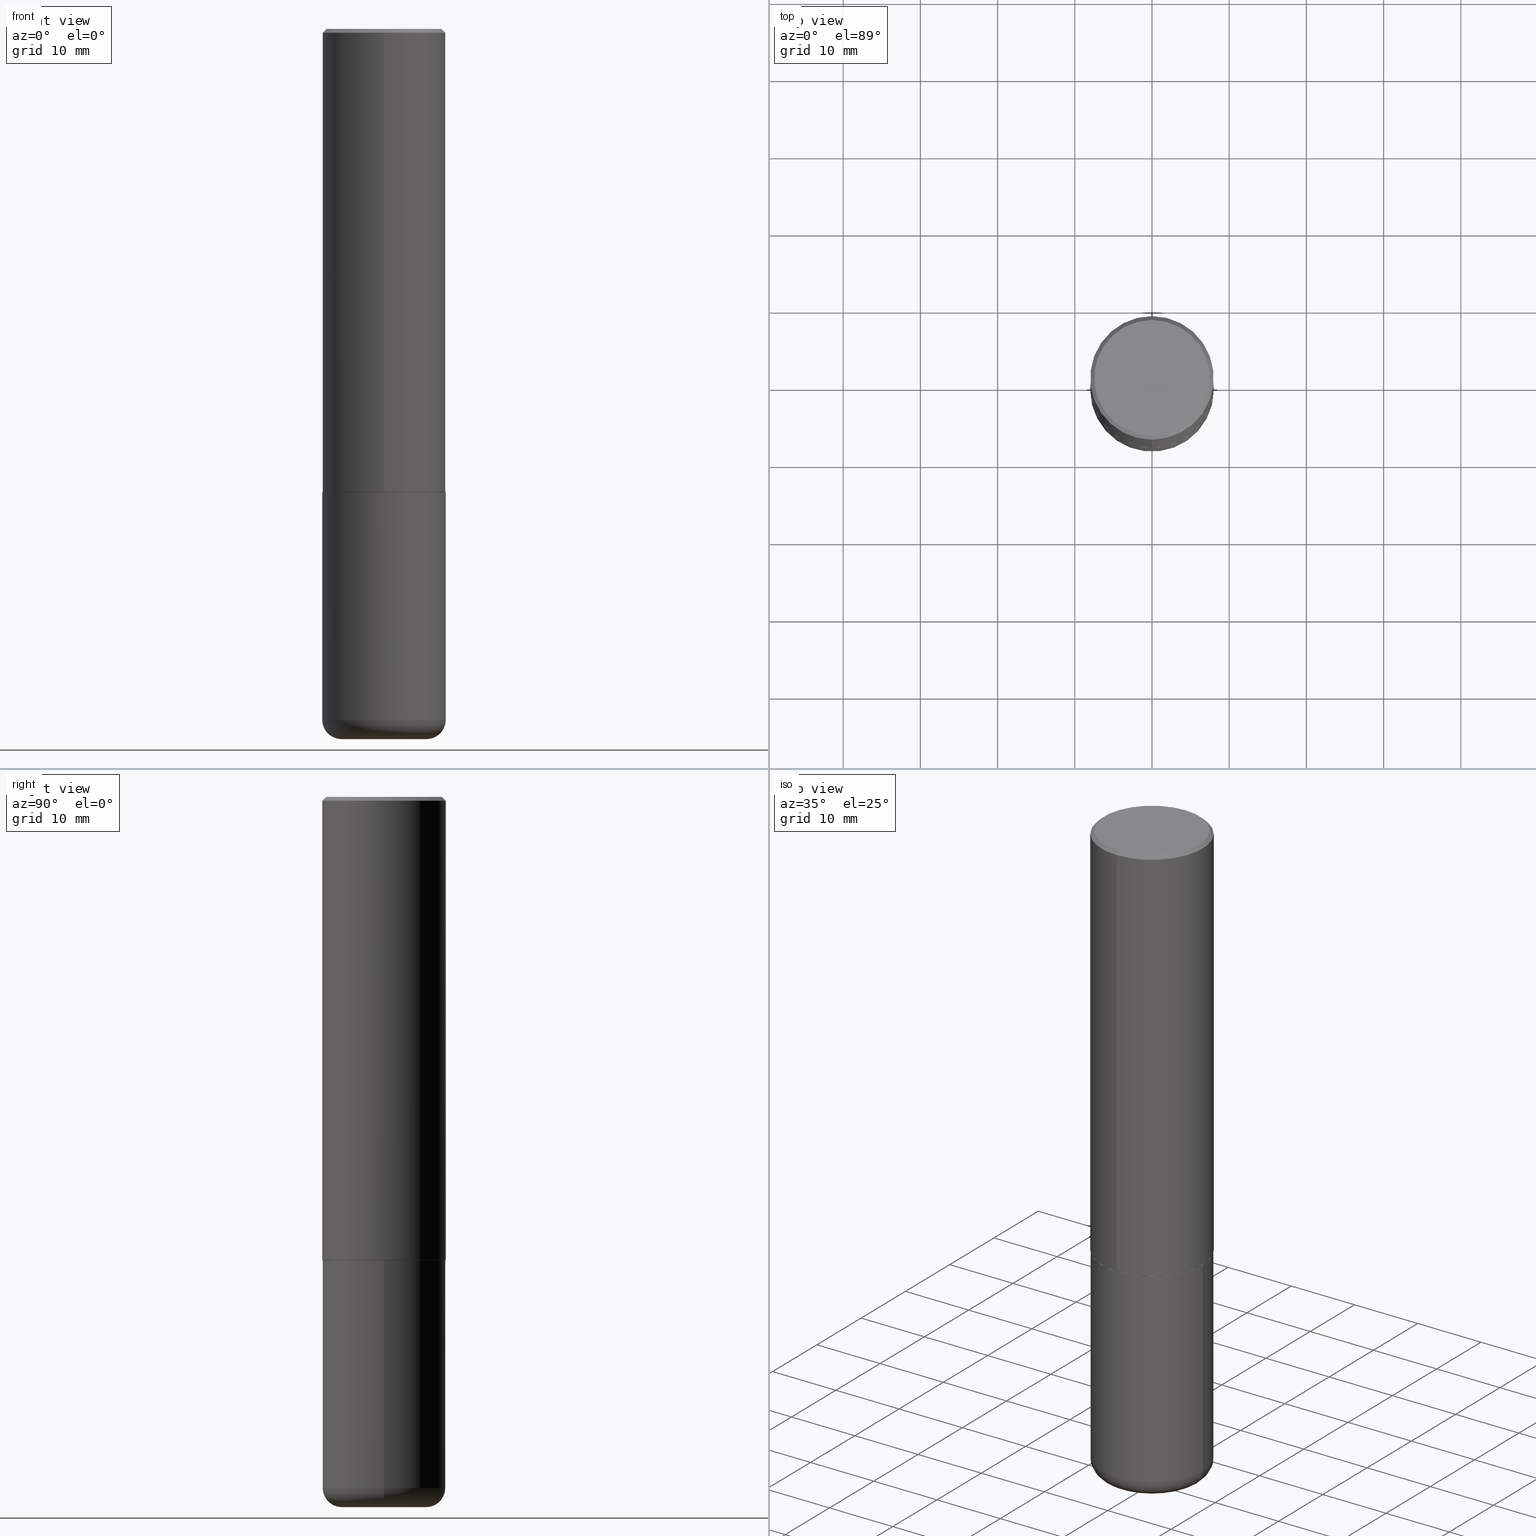
[diagram: canonical four-view strip — front | top / right | iso, engineering-drawing reading convention]
A machine part, canonical four-view strip (front | top / right | iso — engineering-drawing reading convention). The complete STEP part file that produces these views, byte-faithful:
ISO-10303-21;
HEADER;
FILE_DESCRIPTION (( 'STEP AP203' ),
    '1' );
FILE_NAME ('44829.STEP',
    '2024-03-04T09:25:03',
    ( '' ),
    ( '' ),
    'SwSTEP 2.0',
    'SolidWorks 2023',
    '' );
FILE_SCHEMA (( 'CONFIG_CONTROL_DESIGN' ));
ENDSEC;

DATA;
#1 = DIRECTION ( 'NONE',  ( -6.982962677686265922E-15, -1.000000000000000000, 3.488924027272925171E-15 ) ) ;
#2 = EDGE_CURVE ( 'NONE', #26, #371, #51, .T. ) ;
#3 = DIRECTION ( 'NONE',  ( -4.937700262164378437E-15, -0.7071067811865208164, 0.7071067811865739960 ) ) ;
#4 = TOROIDAL_SURFACE ( 'NONE', #60, 0.2165500000000000203, 0.09839999999999984870 ) ;
#5 = LOCAL_TIME ( 4, 25, 3.000000000000000000, #195 ) ;
#6 = CC_DESIGN_SECURITY_CLASSIFICATION ( #359, ( #35 ) ) ;
#7 = DIRECTION ( 'NONE',  ( 1.000000000000000000, -6.982962677686266711E-15, 4.883557194083112901E-29 ) ) ;
#8 = PERSON_AND_ORGANIZATION ( #14, #31 ) ;
#9 = ORIENTED_EDGE ( 'NONE', *, *, #90, .F. ) ;
#10 = COORDINATED_UNIVERSAL_TIME_OFFSET ( 5, 0, .BEHIND. ) ;
#11 = COORDINATED_UNIVERSAL_TIME_OFFSET ( 5, 0, .BEHIND. ) ;
#12 = AXIS2_PLACEMENT_3D ( 'NONE', #286, #190, #358 ) ;
#13 = EDGE_CURVE ( 'NONE', #371, #408, #357, .T. ) ;
#14 = PERSON ( 'UNSPECIFIED', 'UNSPECIFIED', 'UNSPECIFIED', ('UNSPECIFIED'), ('UNSPECIFIED'), ('UNSPECIFIED') ) ;
#15 = ADVANCED_FACE ( 'NONE', ( #247 ), #380, .T. ) ;
#16 = CARTESIAN_POINT ( 'NONE',  ( -0.2165500000000000203, -1.058609720713632398E-14, -3.621999999999999442 ) ) ;
#17 = EDGE_LOOP ( 'NONE', ( #100, #307 ) ) ;
#18 = ADVANCED_FACE ( 'NONE', ( #158 ), #42, .F. ) ;
#19 = CARTESIAN_POINT ( 'NONE',  ( 2.199284095337289871E-15, 0.3149499999999999522, -0.02000000000000116615 ) ) ;
#20 = AXIS2_PLACEMENT_3D ( 'NONE', #252, #217, #52 ) ;
#21 = CARTESIAN_POINT ( 'NONE',  ( 5.778457484332707712E-29, -8.238047413196831500E-15, -2.361199999999999743 ) ) ;
#22 = CARTESIAN_POINT ( 'NONE',  ( 0.2165500000000000203, -1.381474421340066671E-14, -3.523599999999999621 ) ) ;
#23 = DIRECTION ( 'NONE',  ( -6.982962677686266711E-15, -1.000000000000000000, 3.480615376543096919E-15 ) ) ;
#24 = DIRECTION ( 'NONE',  ( 1.000000000000000000, -6.982962677686269866E-15, 0.000000000000000000 ) ) ;
#25 = CLOSED_SHELL ( 'NONE', ( #290, #15, #116, #240, #109, #73, #64, #58 ) ) ;
#26 = VERTEX_POINT ( 'NONE', #402 ) ;
#27 = EDGE_CURVE ( 'NONE', #176, #119, #271, .T. ) ;
#28 = CARTESIAN_POINT ( 'NONE',  ( -2.199284095337290265E-15, -0.3149500000000001743, 1.098836622389608521E-15 ) ) ;
#29 =( NAMED_UNIT ( * ) SI_UNIT ( $, .STERADIAN. ) SOLID_ANGLE_UNIT ( ) );
#30 = AXIS2_PLACEMENT_3D ( 'NONE', #399, #165, #37 ) ;
#31 = ORGANIZATION ( 'UNSPECIFIED', 'UNSPECIFIED', '' ) ;
#32 = DIRECTION ( 'NONE',  ( -1.000000000000000000, 6.982962677686265922E-15, -4.876176775795935793E-29 ) ) ;
#33 = CARTESIAN_POINT ( 'NONE',  ( -2.192301132659545875E-15, -0.3139500000000082780, -2.362199999999998745 ) ) ;
#34 = AXIS2_PLACEMENT_3D ( 'NONE', #95, #285, #155 ) ;
#35 = PRODUCT_DEFINITION_FORMATION_WITH_SPECIFIED_SOURCE ( 'ANY', '', #178, .NOT_KNOWN. ) ;
#36 = CALENDAR_DATE ( 2024, 4, 3 ) ;
#37 = DIRECTION ( 'NONE',  ( 6.982962677686265922E-15, 1.000000000000000000, -3.488924027272925171E-15 ) ) ;
#38 = ORIENTED_EDGE ( 'NONE', *, *, #308, .F. ) ;
#39 = ADVANCED_FACE ( 'NONE', ( #300 ), #4, .T. ) ;
#40 = EDGE_LOOP ( 'NONE', ( #245, #61 ) ) ;
#41 = APPROVAL_STATUS ( 'not_yet_approved' ) ;
#42 = PLANE ( 'NONE',  #229 ) ;
#43 = EDGE_CURVE ( 'NONE', #408, #371, #330, .T. ) ;
#44 = DIRECTION ( 'NONE',  ( 1.000000000000000000, 0.000000000000000000, 0.000000000000000000 ) ) ;
#45 = CONICAL_SURFACE ( 'NONE', #405, 0.3139500000000000068, 0.7853981633974141952 ) ;
#46 = PRODUCT_DEFINITION_SHAPE ( 'NONE', 'NONE',  #49 ) ;
#47 = FACE_OUTER_BOUND ( 'NONE', #236, .T. ) ;
#48 = CARTESIAN_POINT ( 'NONE',  ( 0.000000000000000000, 0.000000000000000000, 0.000000000000000000 ) ) ;
#49 = PRODUCT_DEFINITION ( 'UNKNOWN', '', #35, #68 ) ;
#50 = DIRECTION ( 'NONE',  ( 1.000000000000000000, -6.982962677686266711E-15, 4.883557194083112901E-29 ) ) ;
#51 = LINE ( 'NONE', #410, #131 ) ;
#52 = DIRECTION ( 'NONE',  ( 6.982962677686265922E-15, 1.000000000000000000, -3.483117034309591132E-15 ) ) ;
#53 = AXIS2_PLACEMENT_3D ( 'NONE', #311, #243, #216 ) ;
#54 = FACE_OUTER_BOUND ( 'NONE', #230, .T. ) ;
#55 = ORIENTED_EDGE ( 'NONE', *, *, #43, .F. ) ;
#56 = CARTESIAN_POINT ( 'NONE',  ( 8.616853885473946211E-29, -1.230258364554770589E-14, -3.523599999999999621 ) ) ;
#57 = ORIENTED_EDGE ( 'NONE', *, *, #218, .F. ) ;
#58 = ADVANCED_FACE ( 'NONE', ( #362 ), #333, .F. ) ;
#59 =( LENGTH_UNIT ( ) NAMED_UNIT ( * ) SI_UNIT ( $, .METRE. ) );
#60 = AXIS2_PLACEMENT_3D ( 'NONE', #238, #200, #7 ) ;
#61 = ORIENTED_EDGE ( 'NONE', *, *, #343, .F. ) ;
#62 = VECTOR ( 'NONE', #377, 39.37007874015748143 ) ;
#63 = CARTESIAN_POINT ( 'NONE',  ( 1.523889590590419512E-28, -3.507606103769704490E-15, -3.621999999999999886 ) ) ;
#64 = ADVANCED_FACE ( 'NONE', ( #264 ), #162, .F. ) ;
#65 = DIRECTION ( 'NONE',  ( 1.000000000000000000, -6.982962677686264344E-15, 0.000000000000000000 ) ) ;
#66 = LINE ( 'NONE', #323, #319 ) ;
#67 = DATE_TIME_ROLE ( 'creation_date' ) ;
#68 = DESIGN_CONTEXT ( 'detailed design', #123, 'design' ) ;
#69 = ORIENTED_EDGE ( 'NONE', *, *, #187, .F. ) ;
#70 = AXIS2_PLACEMENT_3D ( 'NONE', #86, #191, #108 ) ;
#71 = CALENDAR_DATE ( 2024, 4, 3 ) ;
#72 = VERTEX_POINT ( 'NONE', #206 ) ;
#73 = ADVANCED_FACE ( 'NONE', ( #47 ), #110, .T. ) ;
#74 = DATE_TIME_ROLE ( 'classification_date' ) ;
#75 = CARTESIAN_POINT ( 'NONE',  ( -0.2165500000000000203, -1.076390335125921037E-14, -3.523599999999999621 ) ) ;
#76 = ORIENTED_EDGE ( 'NONE', *, *, #93, .F. ) ;
#77 = ORIENTED_EDGE ( 'NONE', *, *, #292, .F. ) ;
#78 = TOROIDAL_SURFACE ( 'NONE', #294, 0.2165500000000000203, 0.09839999999999984870 ) ;
#79 = VERTEX_POINT ( 'NONE', #370 ) ;
#80 = DIRECTION ( 'NONE',  ( -2.445468806185136597E-29, 3.491481338843145583E-15, 1.000000000000000000 ) ) ;
#81 = ORIENTED_EDGE ( 'NONE', *, *, #329, .F. ) ;
#82 = DIRECTION ( 'NONE',  ( 2.447254567310142588E-29, -3.488924027272925566E-15, -1.000000000000000000 ) ) ;
#83 = EDGE_LOOP ( 'NONE', ( #337, #386 ) ) ;
#84 = CARTESIAN_POINT ( 'NONE',  ( 4.894509134620301711E-31, -6.977848054545874748E-17, -0.02000000000000006981 ) ) ;
#85 = CIRCLE ( 'NONE', #197, 0.3149500000000000077 ) ;
#86 = CARTESIAN_POINT ( 'NONE',  ( 0.000000000000000000, 0.000000000000000000, 0.000000000000000000 ) ) ;
#87 = APPROVAL ( #104, 'UNSPECIFIED' ) ;
#88 = CARTESIAN_POINT ( 'NONE',  ( 8.616853885473946211E-29, -1.230258364554770589E-14, -3.523599999999999621 ) ) ;
#89 = DIRECTION ( 'NONE',  ( -6.982962677686264344E-15, -1.000000000000000000, 3.488924027272925566E-15 ) ) ;
#90 = EDGE_CURVE ( 'NONE', #113, #72, #159, .T. ) ;
#91 = CARTESIAN_POINT ( 'NONE',  ( 3.987991069510620843E-45, -5.685472222147516849E-31, -1.629577536714519852E-16 ) ) ;
#92 = AXIS2_PLACEMENT_3D ( 'NONE', #91, #225, #1 ) ;
#93 = EDGE_CURVE ( 'NONE', #279, #276, #141, .T. ) ;
#94 = APPLICATION_PROTOCOL_DEFINITION ( 'international standard', 'config_control_design', 1994, #125 ) ;
#95 = CARTESIAN_POINT ( 'NONE',  ( 3.987991069510620843E-45, -5.685472222147516849E-31, -1.629577536714519852E-16 ) ) ;
#96 = AXIS2_PLACEMENT_3D ( 'NONE', #84, #82, #409 ) ;
#97 = CIRCLE ( 'NONE', #92, 0.2949500000000001565 ) ;
#98 = DIRECTION ( 'NONE',  ( 4.937700262164541731E-15, 0.7071067811865442421, -0.7071067811865507924 ) ) ;
#99 = PERSON_AND_ORGANIZATION ( #14, #31 ) ;
#100 = ORIENTED_EDGE ( 'NONE', *, *, #187, .T. ) ;
#101 = DIRECTION ( 'NONE',  ( 0.000000000000000000, 0.000000000000000000, 1.000000000000000000 ) ) ;
#102 = APPROVAL ( #338, 'UNSPECIFIED' ) ;
#103 = CIRCLE ( 'NONE', #12, 0.3149500000000000077 ) ;
#104 = APPROVAL_STATUS ( 'not_yet_approved' ) ;
#105 = DIRECTION ( 'NONE',  ( -6.982962677686266711E-15, -1.000000000000000000, 3.480615376543096919E-15 ) ) ;
#106 = ORIENTED_EDGE ( 'NONE', *, *, #13, .F. ) ;
#107 = CALENDAR_DATE ( 2024, 4, 3 ) ;
#108 = DIRECTION ( 'NONE',  ( -6.982962677686264344E-15, -1.000000000000000000, 3.488924027272925566E-15 ) ) ;
#109 = ADVANCED_FACE ( 'NONE', ( #121 ), #249, .T. ) ;
#110 = CONICAL_SURFACE ( 'NONE', #353, 0.3139500000000000068, 0.7853981633974141952 ) ;
#111 = FACE_OUTER_BOUND ( 'NONE', #166, .T. ) ;
#112 = DIRECTION ( 'NONE',  ( -2.447254567310142588E-29, 3.488924027272925566E-15, 1.000000000000000000 ) ) ;
#113 = VERTEX_POINT ( 'NONE', #16 ) ;
#114 = DIRECTION ( 'NONE',  ( -6.982962677686266711E-15, -1.000000000000000000, 3.480615376543096919E-15 ) ) ;
#115 = DIRECTION ( 'NONE',  ( -6.982962677686265922E-15, -1.000000000000000000, 3.469564049740290009E-15 ) ) ;
#116 = ADVANCED_FACE ( 'NONE', ( #54 ), #281, .T. ) ;
#117 = DIRECTION ( 'NONE',  ( -2.445468806185136597E-29, 3.491481338843145583E-15, 1.000000000000000000 ) ) ;
#118 = CIRCLE ( 'NONE', #255, 0.3149500000000000077 ) ;
#119 = VERTEX_POINT ( 'NONE', #173 ) ;
#120 = MANIFOLD_SOLID_BREP ( 'Body-Move/Copy2[2]', #25 ) ;
#121 = FACE_OUTER_BOUND ( 'NONE', #274, .T. ) ;
#122 = ORIENTED_EDGE ( 'NONE', *, *, #2, .T. ) ;
#123 = APPLICATION_CONTEXT ( 'configuration controlled 3d designs of mechanical parts and assemblies' ) ;
#124 = CARTESIAN_POINT ( 'NONE',  ( -2.199284095337233467E-15, -0.3149500000000085564, -2.361199999999998411 ) ) ;
#125 = APPLICATION_CONTEXT ( 'configuration controlled 3d designs of mechanical parts and assemblies' ) ;
#126 =( CONVERSION_BASED_UNIT ( 'INCH', #415 ) LENGTH_UNIT ( ) NAMED_UNIT ( #348 ) );
#127 = CIRCLE ( 'NONE', #324, 0.2165500000000000203 ) ;
#128 = CC_DESIGN_APPROVAL ( #102, ( #35 ) ) ;
#129 = DIRECTION ( 'NONE',  ( -4.851104656540957964E-15, -0.7071067811865491270, -0.7071067811865459074 ) ) ;
#130 = EDGE_CURVE ( 'NONE', #371, #279, #183, .T. ) ;
#131 = VECTOR ( 'NONE', #312, 39.37007874015748854 ) ;
#132 = PERSON_AND_ORGANIZATION_ROLE ( 'design_supplier' ) ;
#133 = ORIENTED_EDGE ( 'NONE', *, *, #320, .F. ) ;
#134 = APPROVAL_ROLE ( '' ) ;
#135 = AXIS2_PLACEMENT_3D ( 'NONE', #157, #101, #44 ) ;
#136 = LOCAL_TIME ( 4, 25, 3.000000000000000000, #11 ) ;
#137 = DIRECTION ( 'NONE',  ( 1.000000000000000000, -6.982962677686266711E-15, 0.000000000000000000 ) ) ;
#138 = CC_DESIGN_PERSON_AND_ORGANIZATION_ASSIGNMENT ( #360, #361, ( #178 ) ) ;
#139 = CARTESIAN_POINT ( 'NONE',  ( -0.3149500000000000077, -8.037226085805055984E-15, -2.362199999999999633 ) ) ;
#140 = ORIENTED_EDGE ( 'NONE', *, *, #218, .T. ) ;
#141 = CIRCLE ( 'NONE', #232, 0.3149500000000000077 ) ;
#142 = CARTESIAN_POINT ( 'NONE',  ( 0.3149499999999999522, -1.450186774088499734E-14, -3.523599999999999621 ) ) ;
#143 = DIRECTION ( 'NONE',  ( -2.447254567310142588E-29, 3.488924027272925566E-15, 1.000000000000000000 ) ) ;
#144 = DIRECTION ( 'NONE',  ( -1.000000000000000000, 7.105427357601009747E-15, 0.000000000000000000 ) ) ;
#145 = ORIENTED_EDGE ( 'NONE', *, *, #389, .F. ) ;
#146 = ADVANCED_FACE ( 'NONE', ( #147 ), #411, .T. ) ;
#147 = FACE_OUTER_BOUND ( 'NONE', #186, .T. ) ;
#148 = CARTESIAN_POINT ( 'NONE',  ( -2.160713844398143363E-15, -0.3149500000000000632, -0.01999999999999896999 ) ) ;
#149 = ORIENTED_EDGE ( 'NONE', *, *, #417, .F. ) ;
#150 = DIRECTION ( 'NONE',  ( -2.445468806185136877E-29, 3.491481338843145188E-15, 1.000000000000000000 ) ) ;
#151 = ORIENTED_EDGE ( 'NONE', *, *, #374, .T. ) ;
#152 = LINE ( 'NONE', #256, #354 ) ;
#153 = AXIS2_PLACEMENT_3D ( 'NONE', #297, #396, #261 ) ;
#154 = CIRCLE ( 'NONE', #34, 0.2949500000000001565 ) ;
#155 = DIRECTION ( 'NONE',  ( -6.982962677686265922E-15, -1.000000000000000000, 3.488924027272925171E-15 ) ) ;
#156 = DIRECTION ( 'NONE',  ( -2.447254567310142588E-29, 3.488924027272925171E-15, 1.000000000000000000 ) ) ;
#157 = CARTESIAN_POINT ( 'NONE',  ( 0.000000000000000000, 0.000000000000000000, 0.000000000000000000 ) ) ;
#158 = FACE_OUTER_BOUND ( 'NONE', #17, .T. ) ;
#159 = CIRCLE ( 'NONE', #223, 0.09839999999999986258 ) ;
#160 = DATE_AND_TIME ( #237, #136 ) ;
#161 = APPROVAL_DATE_TIME ( #235, #102 ) ;
#162 = PLANE ( 'NONE',  #153 ) ;
#163 = ORIENTED_EDGE ( 'NONE', *, *, #130, .F. ) ;
#164 = APPROVAL_ROLE ( '' ) ;
#165 = DIRECTION ( 'NONE',  ( 2.447254567310142588E-29, -3.488924027272925171E-15, -1.000000000000000000 ) ) ;
#166 = EDGE_LOOP ( 'NONE', ( #145, #335, #182, #239 ) ) ;
#167 = DATE_AND_TIME ( #334, #5 ) ;
#168 = DIRECTION ( 'NONE',  ( -1.000000000000000000, 6.982962677686265922E-15, -4.876176775795935793E-29 ) ) ;
#169 = CIRCLE ( 'NONE', #242, 0.3149500000000000077 ) ;
#170 = CARTESIAN_POINT ( 'NONE',  ( 5.780904738900019029E-29, -8.241536337224105045E-15, -2.362200000000000077 ) ) ;
#171 = ORIENTED_EDGE ( 'NONE', *, *, #418, .F. ) ;
#172 = CC_DESIGN_PERSON_AND_ORGANIZATION_ASSIGNMENT ( #231, #369, ( #359 ) ) ;
#173 = CARTESIAN_POINT ( 'NONE',  ( 0.3149500000000000077, -1.044686131395256792E-14, -2.362199999999999633 ) ) ;
#174 = ORIENTED_EDGE ( 'NONE', *, *, #406, .F. ) ;
#175 = DIRECTION ( 'NONE',  ( -2.445468806185136597E-29, 3.491481338843145583E-15, 1.000000000000000000 ) ) ;
#176 = VERTEX_POINT ( 'NONE', #139 ) ;
#177 = VECTOR ( 'NONE', #3, 39.37007874015748854 ) ;
#178 = PRODUCT ( '44829', '44829', '', ( #403 ) ) ;
#179 = CARTESIAN_POINT ( 'NONE',  ( 5.780904738900019029E-29, -8.241536337224105045E-15, -2.362200000000000077 ) ) ;
#180 = ORIENTED_EDGE ( 'NONE', *, *, #320, .T. ) ;
#181 = CARTESIAN_POINT ( 'NONE',  ( 5.776686413970529753E-29, -8.247577218615278049E-15, -2.362199999999999633 ) ) ;
#182 = ORIENTED_EDGE ( 'NONE', *, *, #329, .T. ) ;
#183 = LINE ( 'NONE', #309, #62 ) ;
#184 = AXIS2_PLACEMENT_3D ( 'NONE', #21, #143, #115 ) ;
#185 = LINE ( 'NONE', #28, #248 ) ;
#186 = EDGE_LOOP ( 'NONE', ( #342, #373, #378, #253 ) ) ;
#187 = EDGE_CURVE ( 'NONE', #119, #176, #169, .T. ) ;
#188 = CARTESIAN_POINT ( 'NONE',  ( 0.2165500000000000203, -1.415830597714283123E-14, -3.621999999999999442 ) ) ;
#189 = CARTESIAN_POINT ( 'NONE',  ( 2.237854346276465567E-15, 0.3149499999999920141, -2.361200000000000632 ) ) ;
#190 = DIRECTION ( 'NONE',  ( -2.447254567310142588E-29, 3.488924027272925566E-15, 1.000000000000000000 ) ) ;
#191 = DIRECTION ( 'NONE',  ( -2.447254567310142588E-29, 3.488924027272925566E-15, 1.000000000000000000 ) ) ;
#192 = CC_DESIGN_APPROVAL ( #87, ( #49 ) ) ;
#193 = APPROVAL_DATE_TIME ( #160, #280 ) ;
#194 = LINE ( 'NONE', #291, #272 ) ;
#195 = COORDINATED_UNIVERSAL_TIME_OFFSET ( 5, 0, .BEHIND. ) ;
#196 = DIRECTION ( 'NONE',  ( -2.445468806185136597E-29, 3.491481338843145583E-15, 1.000000000000000000 ) ) ;
#197 = AXIS2_PLACEMENT_3D ( 'NONE', #56, #382, #407 ) ;
#198 = APPROVAL_PERSON_ORGANIZATION ( #263, #102, #134 ) ;
#199 = DATE_AND_TIME ( #71, #340 ) ;
#200 = DIRECTION ( 'NONE',  ( -2.445468806185136597E-29, 3.491481338843145583E-15, 1.000000000000000000 ) ) ;
#201 = ORIENTED_EDGE ( 'NONE', *, *, #234, .F. ) ;
#202 = PERSON_AND_ORGANIZATION ( #14, #31 ) ;
#203 = DIRECTION ( 'NONE',  ( 7.105427357601001859E-15, 1.000000000000000000, -3.491481338843145583E-15 ) ) ;
#204 = ORIENTED_EDGE ( 'NONE', *, *, #222, .F. ) ;
#205 = APPROVAL_DATE_TIME ( #167, #87 ) ;
#206 = CARTESIAN_POINT ( 'NONE',  ( -0.3149499999999999522, -1.006472929927126990E-14, -3.523599999999999621 ) ) ;
#207 = ADVANCED_FACE ( 'NONE', ( #375 ), #273, .T. ) ;
#208 = CIRCLE ( 'NONE', #302, 0.3139500000000000068 ) ;
#209 = LOCAL_TIME ( 4, 25, 3.000000000000000000, #260 ) ;
#210 = CARTESIAN_POINT ( 'NONE',  ( 5.776686413970529753E-29, -8.247577218615278049E-15, -2.362199999999999633 ) ) ;
#211 = DIRECTION ( 'NONE',  ( -2.447254567310142588E-29, 3.488924027272925566E-15, 1.000000000000000000 ) ) ;
#212 = ORIENTED_EDGE ( 'NONE', *, *, #418, .T. ) ;
#213 = FACE_OUTER_BOUND ( 'NONE', #214, .T. ) ;
#214 = EDGE_LOOP ( 'NONE', ( #270, #122, #55, #171 ) ) ;
#215 = VECTOR ( 'NONE', #129, 39.37007874015748143 ) ;
#216 = DIRECTION ( 'NONE',  ( 1.000000000000000000, -6.982962677686266711E-15, 4.876176775795936353E-29 ) ) ;
#217 = DIRECTION ( 'NONE',  ( 2.447254567310142588E-29, -3.488924027272925566E-15, -1.000000000000000000 ) ) ;
#218 = EDGE_CURVE ( 'NONE', #284, #72, #85, .T. ) ;
#219 = ORIENTED_EDGE ( 'NONE', *, *, #130, .T. ) ;
#220 = DIRECTION ( 'NONE',  ( -2.445468806185136597E-29, 3.491481338843145583E-15, 1.000000000000000000 ) ) ;
#221 = ORIENTED_EDGE ( 'NONE', *, *, #13, .T. ) ;
#222 = EDGE_CURVE ( 'NONE', #113, #400, #127, .T. ) ;
#223 = AXIS2_PLACEMENT_3D ( 'NONE', #75, #203, #144 ) ;
#224 = AXIS2_PLACEMENT_3D ( 'NONE', #63, #228, #32 ) ;
#225 = DIRECTION ( 'NONE',  ( -2.447254567310142588E-29, 3.488924027272925566E-15, 1.000000000000000000 ) ) ;
#226 = ADVANCED_FACE ( 'NONE', ( #413 ), #78, .T. ) ;
#227 = CARTESIAN_POINT ( 'NONE',  ( 5.780904738900019029E-29, -8.241536337224105045E-15, -2.362200000000000077 ) ) ;
#228 = DIRECTION ( 'NONE',  ( 2.438088387897960049E-29, -3.491481338843145188E-15, -1.000000000000000000 ) ) ;
#229 = AXIS2_PLACEMENT_3D ( 'NONE', #210, #372, #168 ) ;
#230 = EDGE_LOOP ( 'NONE', ( #149, #298, #180, #81 ) ) ;
#231 = PERSON_AND_ORGANIZATION ( #14, #31 ) ;
#232 = AXIS2_PLACEMENT_3D ( 'NONE', #283, #277, #379 ) ;
#233 =( GEOMETRIC_REPRESENTATION_CONTEXT ( 3 ) GLOBAL_UNCERTAINTY_ASSIGNED_CONTEXT ( ( #306 ) ) GLOBAL_UNIT_ASSIGNED_CONTEXT ( ( #126, #388, #29 ) ) REPRESENTATION_CONTEXT ( 'NONE', 'WORKASPACE' ) );
#234 = EDGE_CURVE ( 'NONE', #72, #284, #118, .T. ) ;
#235 = DATE_AND_TIME ( #107, #209 ) ;
#236 = EDGE_LOOP ( 'NONE', ( #368, #350, #212, #106 ) ) ;
#237 = CALENDAR_DATE ( 2024, 4, 3 ) ;
#238 = CARTESIAN_POINT ( 'NONE',  ( 8.616853885473946211E-29, -1.230258364554770589E-14, -3.523599999999999621 ) ) ;
#239 = ORIENTED_EDGE ( 'NONE', *, *, #93, .T. ) ;
#240 = ADVANCED_FACE ( 'NONE', ( #111 ), #288, .T. ) ;
#241 = EDGE_LOOP ( 'NONE', ( #9, #303, #265, #201 ) ) ;
#242 = AXIS2_PLACEMENT_3D ( 'NONE', #181, #117, #246 ) ;
#243 = DIRECTION ( 'NONE',  ( -2.445468806185136597E-29, 3.491481338843145583E-15, 1.000000000000000000 ) ) ;
#244 = CC_DESIGN_PERSON_AND_ORGANIZATION_ASSIGNMENT ( #331, #401, ( #49 ) ) ;
#245 = ORIENTED_EDGE ( 'NONE', *, *, #267, .F. ) ;
#246 = DIRECTION ( 'NONE',  ( 1.000000000000000000, -6.982962677686266711E-15, 0.000000000000000000 ) ) ;
#247 = FACE_OUTER_BOUND ( 'NONE', #310, .T. ) ;
#248 = VECTOR ( 'NONE', #156, 39.37007874015748143 ) ;
#249 = CYLINDRICAL_SURFACE ( 'NONE', #398, 0.3149500000000001743 ) ;
#250 = EDGE_LOOP ( 'NONE', ( #140, #151, #69, #174 ) ) ;
#251 = CC_DESIGN_DATE_AND_TIME_ASSIGNMENT ( #199, #74, ( #359 ) ) ;
#252 = CARTESIAN_POINT ( 'NONE',  ( 4.894509134620301711E-31, -6.977848054545874748E-17, -0.02000000000000006981 ) ) ;
#253 = ORIENTED_EDGE ( 'NONE', *, *, #27, .F. ) ;
#254 = DIRECTION ( 'NONE',  ( 1.000000000000000000, -6.982962677686271444E-15, 0.000000000000000000 ) ) ;
#255 = AXIS2_PLACEMENT_3D ( 'NONE', #88, #175, #24 ) ;
#256 = CARTESIAN_POINT ( 'NONE',  ( 2.199284095337289871E-15, 0.3149499999999999522, -0.02000000000000116615 ) ) ;
#257 = DIRECTION ( 'NONE',  ( -6.982962677686266711E-15, -1.000000000000000000, 3.491481338843145583E-15 ) ) ;
#258 = CIRCLE ( 'NONE', #282, 0.3139500000000000068 ) ;
#259 = CARTESIAN_POINT ( 'NONE',  ( 5.778457484332707712E-29, -8.238047413196831500E-15, -2.361199999999999743 ) ) ;
#260 = COORDINATED_UNIVERSAL_TIME_OFFSET ( 5, 0, .BEHIND. ) ;
#261 = DIRECTION ( 'NONE',  ( -6.982962677686265922E-15, -1.000000000000000000, 3.488924027272925171E-15 ) ) ;
#262 = VERTEX_POINT ( 'NONE', #275 ) ;
#263 = PERSON_AND_ORGANIZATION ( #14, #31 ) ;
#264 = FACE_OUTER_BOUND ( 'NONE', #40, .T. ) ;
#265 = ORIENTED_EDGE ( 'NONE', *, *, #292, .T. ) ;
#266 = MANIFOLD_SOLID_BREP ( 'Body-Move/Copy2[1]', #318 ) ;
#267 = EDGE_CURVE ( 'NONE', #347, #26, #208, .T. ) ;
#268 = DIRECTION ( 'NONE',  ( -6.982962677686265922E-15, -1.000000000000000000, 3.469564049740290009E-15 ) ) ;
#269 = DIRECTION ( 'NONE',  ( 1.000000000000000000, -6.982962677686264344E-15, 0.000000000000000000 ) ) ;
#270 = ORIENTED_EDGE ( 'NONE', *, *, #267, .T. ) ;
#271 = CIRCLE ( 'NONE', #365, 0.3149500000000000077 ) ;
#272 = VECTOR ( 'NONE', #390, 39.37007874015748143 ) ;
#273 = CYLINDRICAL_SURFACE ( 'NONE', #313, 0.3149500000000000077 ) ;
#274 = EDGE_LOOP ( 'NONE', ( #163, #221, #363, #76 ) ) ;
#275 = CARTESIAN_POINT ( 'NONE',  ( 2.129454468560427362E-15, 0.2949500000000001565, -1.192015895515601796E-15 ) ) ;
#276 = VERTEX_POINT ( 'NONE', #148 ) ;
#277 = DIRECTION ( 'NONE',  ( -2.447254567310142588E-29, 3.488924027272925566E-15, 1.000000000000000000 ) ) ;
#278 = ADVANCED_BREP_SHAPE_REPRESENTATION ( '44829', ( #266, #120, #135 ), #233 ) ;
#279 = VERTEX_POINT ( 'NONE', #19 ) ;
#280 = APPROVAL ( #41, 'UNSPECIFIED' ) ;
#281 = CONICAL_SURFACE ( 'NONE', #20, 0.3149500000000000077, 0.7853981633974471688 ) ;
#282 = AXIS2_PLACEMENT_3D ( 'NONE', #227, #416, #325 ) ;
#283 = CARTESIAN_POINT ( 'NONE',  ( 4.894509134620301711E-31, -6.977848054545874748E-17, -0.02000000000000006981 ) ) ;
#284 = VERTEX_POINT ( 'NONE', #142 ) ;
#285 = DIRECTION ( 'NONE',  ( -2.447254567310142588E-29, 3.488924027272925566E-15, 1.000000000000000000 ) ) ;
#286 = CARTESIAN_POINT ( 'NONE',  ( 4.894509134620301711E-31, -6.977848054545874748E-17, -0.02000000000000006981 ) ) ;
#287 = PRODUCT_RELATED_PRODUCT_CATEGORY ( 'detail', '', ( #178 ) ) ;
#288 = CONICAL_SURFACE ( 'NONE', #96, 0.3149500000000000077, 0.7853981633974471688 ) ;
#289 = LINE ( 'NONE', #328, #215 ) ;
#290 = ADVANCED_FACE ( 'NONE', ( #213 ), #45, .T. ) ;
#291 = CARTESIAN_POINT ( 'NONE',  ( 0.3149500000000000077, -2.199284095337289871E-15, 1.535751875536930130E-29 ) ) ;
#292 = EDGE_CURVE ( 'NONE', #400, #284, #339, .T. ) ;
#293 = AXIS2_PLACEMENT_3D ( 'NONE', #259, #393, #268 ) ;
#294 = AXIS2_PLACEMENT_3D ( 'NONE', #346, #80, #50 ) ;
#295 = CARTESIAN_POINT ( 'NONE',  ( 5.776686413970529753E-29, -8.247577218615278049E-15, -2.362199999999999633 ) ) ;
#296 = APPROVAL_PERSON_ORGANIZATION ( #202, #280, #301 ) ;
#297 = CARTESIAN_POINT ( 'NONE',  ( 5.780904738900019029E-29, -8.241536337224105045E-15, -2.362199999999999633 ) ) ;
#298 = ORIENTED_EDGE ( 'NONE', *, *, #389, .T. ) ;
#299 = DATE_AND_TIME ( #36, #344 ) ;
#300 = FACE_OUTER_BOUND ( 'NONE', #241, .T. ) ;
#301 = APPROVAL_ROLE ( '' ) ;
#302 = AXIS2_PLACEMENT_3D ( 'NONE', #315, #112, #23 ) ;
#303 = ORIENTED_EDGE ( 'NONE', *, *, #222, .T. ) ;
#304 = APPLICATION_PROTOCOL_DEFINITION ( 'international standard', 'config_control_design', 1994, #123 ) ;
#305 = DIRECTION ( 'NONE',  ( -2.447254567310142588E-29, 3.488924027272925566E-15, 1.000000000000000000 ) ) ;
#306 = UNCERTAINTY_MEASURE_WITH_UNIT (LENGTH_MEASURE( 1.000000000000000082E-05 ), #126, 'distance_accuracy_value', 'NONE');
#307 = ORIENTED_EDGE ( 'NONE', *, *, #27, .T. ) ;
#308 = EDGE_CURVE ( 'NONE', #408, #276, #185, .T. ) ;
#309 = CARTESIAN_POINT ( 'NONE',  ( 2.237854346276435985E-15, 0.3149500000000001743, -1.098836622389608521E-15 ) ) ;
#310 = EDGE_LOOP ( 'NONE', ( #376, #219, #133, #38 ) ) ;
#311 = CARTESIAN_POINT ( 'NONE',  ( 0.000000000000000000, 0.000000000000000000, 0.000000000000000000 ) ) ;
#312 = DIRECTION ( 'NONE',  ( 5.024295867787889629E-15, 0.7071067811865257013, 0.7071067811865691111 ) ) ;
#313 = AXIS2_PLACEMENT_3D ( 'NONE', #48, #384, #349 ) ;
#314 = DIRECTION ( 'NONE',  ( -2.447254567310142588E-29, 3.488924027272925566E-15, 1.000000000000000000 ) ) ;
#315 = CARTESIAN_POINT ( 'NONE',  ( 5.780904738900019029E-29, -8.241536337224105045E-15, -2.362200000000000077 ) ) ;
#316 = CARTESIAN_POINT ( 'NONE',  ( 8.857488016002563354E-29, -1.264614540928987041E-14, -3.621999999999999442 ) ) ;
#317 = ORIENTED_EDGE ( 'NONE', *, *, #90, .T. ) ;
#318 = CLOSED_SHELL ( 'NONE', ( #207, #226, #18, #146, #39, #322 ) ) ;
#319 = VECTOR ( 'NONE', #150, 39.37007874015748143 ) ;
#320 = EDGE_CURVE ( 'NONE', #276, #279, #103, .T. ) ;
#321 = DIRECTION ( 'NONE',  ( -2.445468806185136597E-29, 3.491481338843145583E-15, 1.000000000000000000 ) ) ;
#322 = ADVANCED_FACE ( 'NONE', ( #356 ), #392, .T. ) ;
#323 = CARTESIAN_POINT ( 'NONE',  ( -0.3149500000000000077, 2.237854346276435590E-15, -1.549218606675782676E-29 ) ) ;
#324 = AXIS2_PLACEMENT_3D ( 'NONE', #316, #220, #269 ) ;
#325 = DIRECTION ( 'NONE',  ( -6.982962677686266711E-15, -1.000000000000000000, 3.480615376543096919E-15 ) ) ;
#326 = CC_DESIGN_APPROVAL ( #280, ( #359 ) ) ;
#327 = SHAPE_DEFINITION_REPRESENTATION ( #46, #278 ) ;
#328 = CARTESIAN_POINT ( 'NONE',  ( -2.160713844398143363E-15, -0.3149500000000000632, -0.01999999999999896999 ) ) ;
#329 = EDGE_CURVE ( 'NONE', #262, #279, #152, .T. ) ;
#330 = CIRCLE ( 'NONE', #293, 0.3149500000000002853 ) ;
#331 = PERSON_AND_ORGANIZATION ( #14, #31 ) ;
#332 = CIRCLE ( 'NONE', #367, 0.2165500000000000203 ) ;
#333 = PLANE ( 'NONE',  #30 ) ;
#334 = CALENDAR_DATE ( 2024, 4, 3 ) ;
#335 = ORIENTED_EDGE ( 'NONE', *, *, #385, .F. ) ;
#336 = PERSON_AND_ORGANIZATION_ROLE ( 'creator' ) ;
#337 = ORIENTED_EDGE ( 'NONE', *, *, #385, .T. ) ;
#338 = APPROVAL_STATUS ( 'not_yet_approved' ) ;
#339 = CIRCLE ( 'NONE', #391, 0.09839999999999986258 ) ;
#340 = LOCAL_TIME ( 4, 25, 3.000000000000000000, #366 ) ;
#341 = CC_DESIGN_PERSON_AND_ORGANIZATION_ASSIGNMENT ( #8, #132, ( #35 ) ) ;
#342 = ORIENTED_EDGE ( 'NONE', *, *, #374, .F. ) ;
#343 = EDGE_CURVE ( 'NONE', #26, #347, #258, .T. ) ;
#344 = LOCAL_TIME ( 4, 25, 3.000000000000000000, #10 ) ;
#345 = CC_DESIGN_DATE_AND_TIME_ASSIGNMENT ( #299, #67, ( #49 ) ) ;
#346 = CARTESIAN_POINT ( 'NONE',  ( 8.616853885473946211E-29, -1.230258364554770589E-14, -3.523599999999999621 ) ) ;
#347 = VERTEX_POINT ( 'NONE', #351 ) ;
#348 = DIMENSIONAL_EXPONENTS ( 1.000000000000000000, 0.000000000000000000, 0.000000000000000000, 0.000000000000000000, 0.000000000000000000, 0.000000000000000000, 0.000000000000000000 ) ;
#349 = DIRECTION ( 'NONE',  ( 1.000000000000000000, -6.982962677686266711E-15, 4.876176775795936353E-29 ) ) ;
#350 = ORIENTED_EDGE ( 'NONE', *, *, #343, .T. ) ;
#351 = CARTESIAN_POINT ( 'NONE',  ( -2.192301132659545875E-15, -0.3139500000000082780, -2.362199999999998745 ) ) ;
#352 = ORIENTED_EDGE ( 'NONE', *, *, #364, .T. ) ;
#353 = AXIS2_PLACEMENT_3D ( 'NONE', #170, #305, #105 ) ;
#354 = VECTOR ( 'NONE', #98, 39.37007874015748143 ) ;
#355 = CARTESIAN_POINT ( 'NONE',  ( 8.857488016002563354E-29, -1.264614540928987041E-14, -3.621999999999999442 ) ) ;
#356 = FACE_OUTER_BOUND ( 'NONE', #412, .T. ) ;
#357 = CIRCLE ( 'NONE', #184, 0.3149500000000002853 ) ;
#358 = DIRECTION ( 'NONE',  ( -6.982962677686265922E-15, -1.000000000000000000, 3.483117034309591132E-15 ) ) ;
#359 = SECURITY_CLASSIFICATION ( '', '', #395 ) ;
#360 = PERSON_AND_ORGANIZATION ( #14, #31 ) ;
#361 = PERSON_AND_ORGANIZATION_ROLE ( 'design_owner' ) ;
#362 = FACE_OUTER_BOUND ( 'NONE', #83, .T. ) ;
#363 = ORIENTED_EDGE ( 'NONE', *, *, #308, .T. ) ;
#364 = EDGE_CURVE ( 'NONE', #400, #113, #332, .T. ) ;
#365 = AXIS2_PLACEMENT_3D ( 'NONE', #295, #196, #137 ) ;
#366 = COORDINATED_UNIVERSAL_TIME_OFFSET ( 5, 0, .BEHIND. ) ;
#367 = AXIS2_PLACEMENT_3D ( 'NONE', #355, #321, #65 ) ;
#368 = ORIENTED_EDGE ( 'NONE', *, *, #2, .F. ) ;
#369 = PERSON_AND_ORGANIZATION_ROLE ( 'classification_officer' ) ;
#370 = CARTESIAN_POINT ( 'NONE',  ( -2.092108864420428426E-15, -0.2949500000000001565, 8.661003881726979238E-16 ) ) ;
#371 = VERTEX_POINT ( 'NONE', #189 ) ;
#372 = DIRECTION ( 'NONE',  ( 2.438088387897960049E-29, -3.491481338843145188E-15, -1.000000000000000000 ) ) ;
#373 = ORIENTED_EDGE ( 'NONE', *, *, #234, .T. ) ;
#374 = EDGE_CURVE ( 'NONE', #72, #176, #66, .T. ) ;
#375 = FACE_OUTER_BOUND ( 'NONE', #250, .T. ) ;
#376 = ORIENTED_EDGE ( 'NONE', *, *, #43, .T. ) ;
#377 = DIRECTION ( 'NONE',  ( -2.447254567310142588E-29, 3.488924027272925171E-15, 1.000000000000000000 ) ) ;
#378 = ORIENTED_EDGE ( 'NONE', *, *, #406, .T. ) ;
#379 = DIRECTION ( 'NONE',  ( -6.982962677686265922E-15, -1.000000000000000000, 3.483117034309591132E-15 ) ) ;
#380 = CYLINDRICAL_SURFACE ( 'NONE', #70, 0.3149500000000001743 ) ;
#381 = APPROVAL_PERSON_ORGANIZATION ( #99, #87, #164 ) ;
#382 = DIRECTION ( 'NONE',  ( -2.445468806185136597E-29, 3.491481338843145583E-15, 1.000000000000000000 ) ) ;
#383 = EDGE_LOOP ( 'NONE', ( #352, #317, #57, #77 ) ) ;
#384 = DIRECTION ( 'NONE',  ( -2.445468806185136597E-29, 3.491481338843145583E-15, 1.000000000000000000 ) ) ;
#385 = EDGE_CURVE ( 'NONE', #262, #79, #154, .T. ) ;
#386 = ORIENTED_EDGE ( 'NONE', *, *, #417, .T. ) ;
#387 = LINE ( 'NONE', #33, #177 ) ;
#388 =( NAMED_UNIT ( * ) PLANE_ANGLE_UNIT ( ) SI_UNIT ( $, .RADIAN. ) );
#389 = EDGE_CURVE ( 'NONE', #79, #276, #289, .T. ) ;
#390 = DIRECTION ( 'NONE',  ( -2.445468806185136877E-29, 3.491481338843145188E-15, 1.000000000000000000 ) ) ;
#391 = AXIS2_PLACEMENT_3D ( 'NONE', #22, #257, #254 ) ;
#392 = PLANE ( 'NONE',  #224 ) ;
#393 = DIRECTION ( 'NONE',  ( -2.447254567310142588E-29, 3.488924027272925566E-15, 1.000000000000000000 ) ) ;
#394 = CC_DESIGN_PERSON_AND_ORGANIZATION_ASSIGNMENT ( #397, #336, ( #35 ) ) ;
#395 = SECURITY_CLASSIFICATION_LEVEL ( 'unclassified' ) ;
#396 = DIRECTION ( 'NONE',  ( -2.447254567310142588E-29, 3.488924027272925171E-15, 1.000000000000000000 ) ) ;
#397 = PERSON_AND_ORGANIZATION ( #14, #31 ) ;
#398 = AXIS2_PLACEMENT_3D ( 'NONE', #404, #211, #89 ) ;
#399 = CARTESIAN_POINT ( 'NONE',  ( 2.059624841783565247E-15, 0.2949500000000001565, -1.110537018679876025E-15 ) ) ;
#400 = VERTEX_POINT ( 'NONE', #188 ) ;
#401 = PERSON_AND_ORGANIZATION_ROLE ( 'creator' ) ;
#402 = CARTESIAN_POINT ( 'NONE',  ( 2.234301632597693067E-15, 0.3139499999999917357, -2.362200000000000966 ) ) ;
#403 = MECHANICAL_CONTEXT ( 'NONE', #125, 'mechanical' ) ;
#404 = CARTESIAN_POINT ( 'NONE',  ( 0.000000000000000000, 0.000000000000000000, 0.000000000000000000 ) ) ;
#405 = AXIS2_PLACEMENT_3D ( 'NONE', #179, #314, #114 ) ;
#406 = EDGE_CURVE ( 'NONE', #284, #119, #194, .T. ) ;
#407 = DIRECTION ( 'NONE',  ( 1.000000000000000000, -6.982962677686269866E-15, 0.000000000000000000 ) ) ;
#408 = VERTEX_POINT ( 'NONE', #124 ) ;
#409 = DIRECTION ( 'NONE',  ( 6.982962677686265922E-15, 1.000000000000000000, -3.483117034309591132E-15 ) ) ;
#410 = CARTESIAN_POINT ( 'NONE',  ( 2.230748918918891775E-15, 0.3139499999999917357, -2.362200000000000966 ) ) ;
#411 = CYLINDRICAL_SURFACE ( 'NONE', #53, 0.3149500000000000077 ) ;
#412 = EDGE_LOOP ( 'NONE', ( #414, #204 ) ) ;
#413 = FACE_OUTER_BOUND ( 'NONE', #383, .T. ) ;
#414 = ORIENTED_EDGE ( 'NONE', *, *, #364, .F. ) ;
#415 = LENGTH_MEASURE_WITH_UNIT ( LENGTH_MEASURE( 0.02539999999999999897 ), #59 );
#416 = DIRECTION ( 'NONE',  ( -2.447254567310142588E-29, 3.488924027272925566E-15, 1.000000000000000000 ) ) ;
#417 = EDGE_CURVE ( 'NONE', #79, #262, #97, .T. ) ;
#418 = EDGE_CURVE ( 'NONE', #347, #408, #387, .T. ) ;
ENDSEC;
END-ISO-10303-21;
